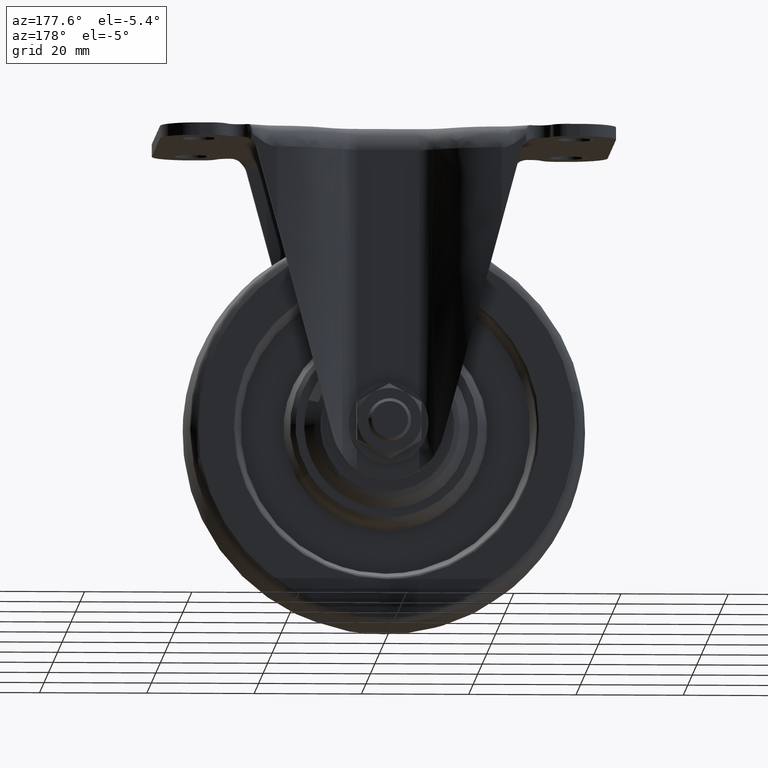
[diagram: clean part render]
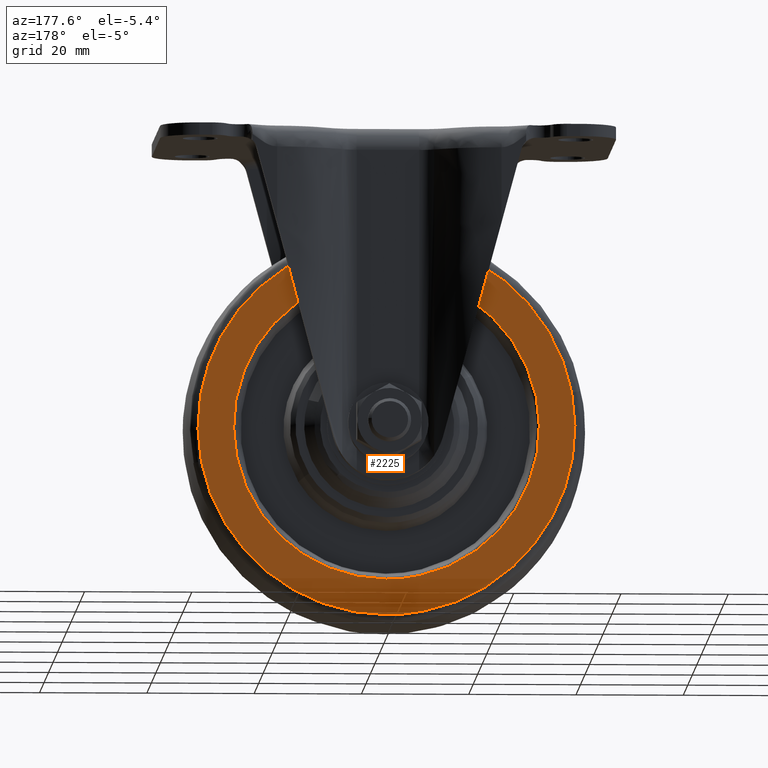
[diagram: same view with one face highlighted and labeled with its STEP entity id]
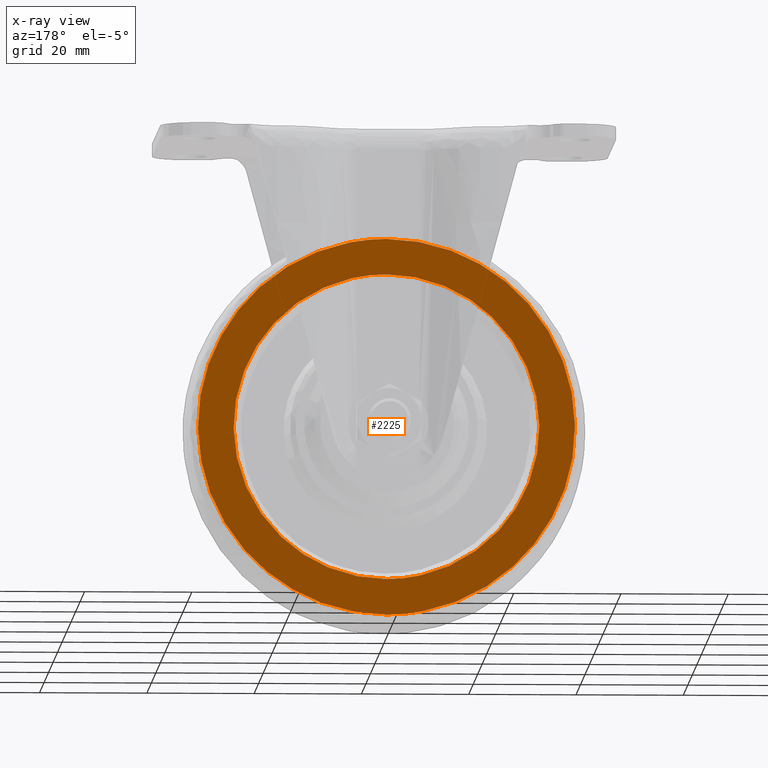
[diagram: x-ray of the same camera — body ghosted, the highlighted face saturated]
A machine part, auxiliary view. The second image highlights one B-rep face of the part: STEP entity #2225.
The next image is the same camera in x-ray: the body ghosted, the highlighted face saturated — about 0% of this face is hidden behind the body in this view.
In plain terms, the highlighted face is a freeform B-spline surface patch.
Its self-contained STEP definition (entity closure, byte-faithful):
#1655=CARTESIAN_POINT('',(34.516554383585138,11.499999999999959,-62.084384894227497));
#1656=VERTEX_POINT('',#1655);
#1657=CARTESIAN_POINT('',(0.0,11.500000000000000,-20.361037999999901));
#1658=VERTEX_POINT('',#1657);
#1659=CARTESIAN_POINT('',(34.516554383585138,11.499999999999959,-62.084384894227497));
#1660=CARTESIAN_POINT('',(35.138962006888292,11.499999999999957,-58.821609869127954));
#1661=CARTESIAN_POINT('',(35.138962006549477,11.499999999999959,-55.500000001249362));
#1662=CARTESIAN_POINT('',(35.138962002965236,11.499999999999982,-20.361038000565529));
#1663=CARTESIAN_POINT('',(0.0,11.500000000000000,-20.361037999999901));
#1671=(BOUNDED_CURVE()B_SPLINE_CURVE(2,(#1659,#1660,#1661,#1662,#1663),.UNSPECIFIED.,.F.,.U.)B_SPLINE_CURVE_WITH_KNOTS((3,2,3),(0.217838633739876,0.250000000000000,0.500000000000000),.UNSPECIFIED.)CURVE()GEOMETRIC_REPRESENTATION_ITEM()RATIONAL_B_SPLINE_CURVE((0.934335795159166,0.962320615658536,1.0,0.707106781186548,1.0))REPRESENTATION_ITEM(''));
#1672=EDGE_CURVE('',#1656,#1658,#1671,.T.);
#1674=CARTESIAN_POINT('',(-34.516554383585152,11.499999999999959,-48.915615105772510));
#1675=VERTEX_POINT('',#1674);
#1676=CARTESIAN_POINT('',(0.0,11.500000000000000,-20.361037999999901));
#1677=CARTESIAN_POINT('',(-29.069477476672439,11.499999999999979,-20.361037999316167));
#1678=CARTESIAN_POINT('',(-34.516554383585138,11.499999999999959,-48.915615105772510));
#1686=(BOUNDED_CURVE()B_SPLINE_CURVE(2,(#1676,#1677,#1678),.UNSPECIFIED.,.F.,.U.)B_SPLINE_CURVE_WITH_KNOTS((3,3),(0.500000000000000,0.717838633739876),.UNSPECIFIED.)CURVE()GEOMETRIC_REPRESENTATION_ITEM()RATIONAL_B_SPLINE_CURVE((1.0,0.744786165528012,0.934335795159166))REPRESENTATION_ITEM(''));
#1687=EDGE_CURVE('',#1658,#1675,#1686,.T.);
#1749=CARTESIAN_POINT('',(0.0,11.499999999999909,-90.638962000000106));
#1750=VERTEX_POINT('',#1749);
#1751=CARTESIAN_POINT('',(0.0,11.499999999999909,-90.638962000000106));
#1752=CARTESIAN_POINT('',(29.069477476672439,11.499999999999934,-90.638962000683833));
#1753=CARTESIAN_POINT('',(34.516554383585138,11.499999999999959,-62.084384894227497));
#1761=(BOUNDED_CURVE()B_SPLINE_CURVE(2,(#1751,#1752,#1753),.UNSPECIFIED.,.F.,.U.)B_SPLINE_CURVE_WITH_KNOTS((3,3),(0.0,0.217838633739876),.UNSPECIFIED.)CURVE()GEOMETRIC_REPRESENTATION_ITEM()RATIONAL_B_SPLINE_CURVE((1.0,0.744786165528012,0.934335795159166))REPRESENTATION_ITEM(''));
#1762=EDGE_CURVE('',#1750,#1656,#1761,.T.);
#1768=CARTESIAN_POINT('',(-34.516554383585138,11.499999999999959,-48.915615105772510));
#1769=CARTESIAN_POINT('',(-35.138962006888292,11.499999999999957,-52.178390130872032));
#1770=CARTESIAN_POINT('',(-35.138962006549477,11.499999999999950,-55.499999998750631));
#1771=CARTESIAN_POINT('',(-35.138962002965236,11.499999999999929,-90.638961999434457));
#1772=CARTESIAN_POINT('',(0.0,11.499999999999909,-90.638962000000106));
#1780=(BOUNDED_CURVE()B_SPLINE_CURVE(2,(#1768,#1769,#1770,#1771,#1772),.UNSPECIFIED.,.F.,.U.)B_SPLINE_CURVE_WITH_KNOTS((3,2,3),(0.717838633739876,0.750000000000000,1.0),.UNSPECIFIED.)CURVE()GEOMETRIC_REPRESENTATION_ITEM()RATIONAL_B_SPLINE_CURVE((0.934335795159166,0.962320615658536,1.0,0.707106781186548,1.0))REPRESENTATION_ITEM(''));
#1781=EDGE_CURVE('',#1675,#1750,#1780,.T.);
#2148=CARTESIAN_POINT('',(-38.646293123088718,11.500000000000000,-16.850655832412141));
#2149=CARTESIAN_POINT('',(-38.646293123088718,11.500000000000000,-94.149346052588669));
#2150=CARTESIAN_POINT('',(38.646295007940729,11.500000000000000,-16.850655832412141));
#2151=CARTESIAN_POINT('',(38.646295007940729,11.500000000000000,-94.149346052588669));
#2152=B_SPLINE_SURFACE_WITH_KNOTS('',1,1,((#2148,#2150),(#2149,#2151)),.UNSPECIFIED.,.F.,.F.,.U.,(2,2),(2,2),(0.0,77.298690220176525),(0.0,77.292588131029447),.UNSPECIFIED.);
#2153=ORIENTED_EDGE('',*,*,#1781,.F.);
#2154=ORIENTED_EDGE('',*,*,#1687,.F.);
#2155=ORIENTED_EDGE('',*,*,#1672,.F.);
#2156=ORIENTED_EDGE('',*,*,#1762,.F.);
#2157=EDGE_LOOP('',(#2153,#2154,#2155,#2156));
#2158=FACE_OUTER_BOUND('',#2157,.T.);
#2159=CARTESIAN_POINT('',(0.0,11.500000000000000,-84.0));
#2160=VERTEX_POINT('',#2159);
#2161=CARTESIAN_POINT('',(28.497749755076491,11.500000000000000,-55.858132136718780));
#2162=VERTEX_POINT('',#2161);
#2163=CARTESIAN_POINT('',(0.0,11.500000000000000,-84.0));
#2164=CARTESIAN_POINT('',(28.144089999891555,11.500000000000002,-83.999999999970285));
#2165=CARTESIAN_POINT('',(28.497749755076494,11.500000000000004,-55.858132136718773));
#2173=(BOUNDED_CURVE()B_SPLINE_CURVE(2,(#2163,#2164,#2165),.UNSPECIFIED.,.F.,.U.)B_SPLINE_CURVE_WITH_KNOTS((3,3),(0.0,0.247784295921094),.UNSPECIFIED.)CURVE()GEOMETRIC_REPRESENTATION_ITEM()RATIONAL_B_SPLINE_CURVE((1.0,0.709702639984982,0.994854295642554))REPRESENTATION_ITEM(''));
#2174=EDGE_CURVE('',#2160,#2162,#2173,.T.);
#2175=ORIENTED_EDGE('',*,*,#2174,.T.);
#2176=CARTESIAN_POINT('',(0.0,11.500000000000000,-27.0));
#2177=VERTEX_POINT('',#2176);
#2178=CARTESIAN_POINT('',(28.497749755076494,11.500000000000004,-55.858132136718773));
#2179=CARTESIAN_POINT('',(28.499999995283702,11.500000000000002,-55.679073137760938));
#2180=CARTESIAN_POINT('',(28.499999995298559,11.500000000000000,-55.499999999940911));
#2181=CARTESIAN_POINT('',(28.499999997664055,11.500000000000002,-26.999999999970637));
#2182=CARTESIAN_POINT('',(0.0,11.500000000000000,-27.0));
#2190=(BOUNDED_CURVE()B_SPLINE_CURVE(2,(#2178,#2179,#2180,#2181,#2182),.UNSPECIFIED.,.F.,.U.)B_SPLINE_CURVE_WITH_KNOTS((3,2,3),(0.247784295921094,0.250000000000000,0.500000000000000),.UNSPECIFIED.)CURVE()GEOMETRIC_REPRESENTATION_ITEM()RATIONAL_B_SPLINE_CURVE((0.994854295642554,0.997404141201565,1.0,0.707106781186547,1.0))REPRESENTATION_ITEM(''));
#2191=EDGE_CURVE('',#2162,#2177,#2190,.T.);
#2192=ORIENTED_EDGE('',*,*,#2191,.T.);
#2193=CARTESIAN_POINT('',(-28.497749755076502,11.500000000000000,-55.141867863281227));
#2194=VERTEX_POINT('',#2193);
#2195=CARTESIAN_POINT('',(0.0,11.500000000000000,-27.0));
#2196=CARTESIAN_POINT('',(-28.144089999891555,11.500000000000000,-27.000000000029726));
#2197=CARTESIAN_POINT('',(-28.497749755076498,11.500000000000002,-55.141867863281227));
#2205=(BOUNDED_CURVE()B_SPLINE_CURVE(2,(#2195,#2196,#2197),.UNSPECIFIED.,.F.,.U.)B_SPLINE_CURVE_WITH_KNOTS((3,3),(0.500000000000000,0.747784295921095),.UNSPECIFIED.)CURVE()GEOMETRIC_REPRESENTATION_ITEM()RATIONAL_B_SPLINE_CURVE((1.0,0.709702639984982,0.994854295642554))REPRESENTATION_ITEM(''));
#2206=EDGE_CURVE('',#2177,#2194,#2205,.T.);
#2207=ORIENTED_EDGE('',*,*,#2206,.T.);
#2208=CARTESIAN_POINT('',(-28.497749755076498,11.500000000000002,-55.141867863281227));
#2209=CARTESIAN_POINT('',(-28.499999995283702,11.500000000000002,-55.320926862239070));
#2210=CARTESIAN_POINT('',(-28.499999995298570,11.500000000000000,-55.500000000059082));
#2211=CARTESIAN_POINT('',(-28.499999997664055,11.500000000000002,-84.000000000029360));
#2212=CARTESIAN_POINT('',(0.0,11.500000000000000,-84.0));
#2220=(BOUNDED_CURVE()B_SPLINE_CURVE(2,(#2208,#2209,#2210,#2211,#2212),.UNSPECIFIED.,.F.,.U.)B_SPLINE_CURVE_WITH_KNOTS((3,2,3),(0.747784295921095,0.750000000000000,1.0),.UNSPECIFIED.)CURVE()GEOMETRIC_REPRESENTATION_ITEM()RATIONAL_B_SPLINE_CURVE((0.994854295642554,0.997404141201565,1.0,0.707106781186547,1.0))REPRESENTATION_ITEM(''));
#2221=EDGE_CURVE('',#2194,#2160,#2220,.T.);
#2222=ORIENTED_EDGE('',*,*,#2221,.T.);
#2223=EDGE_LOOP('',(#2175,#2192,#2207,#2222));
#2224=FACE_BOUND('',#2223,.T.);
#2225=ADVANCED_FACE('',(#2158,#2224),#2152,.F.);